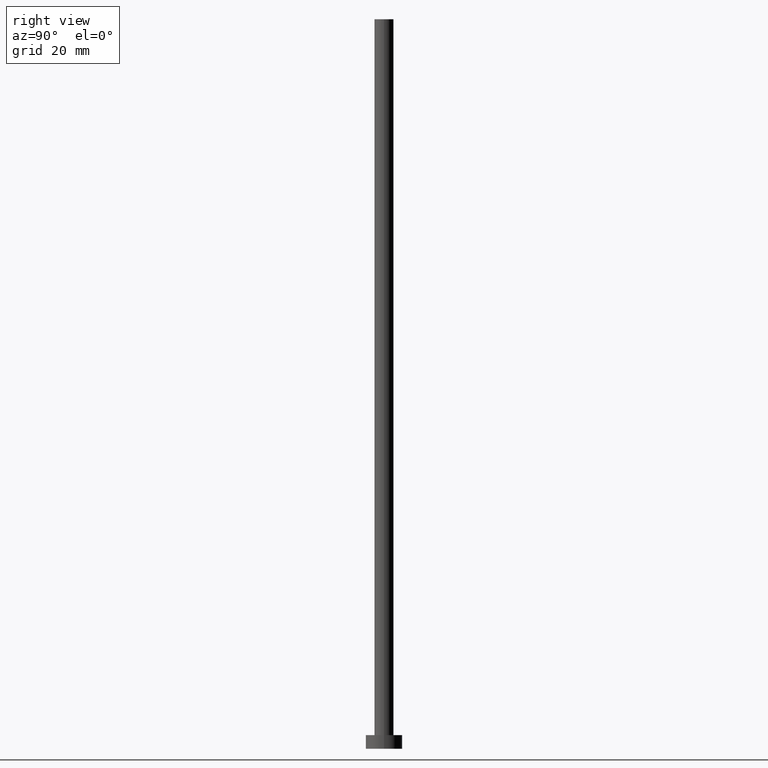
[diagram: clean part render]
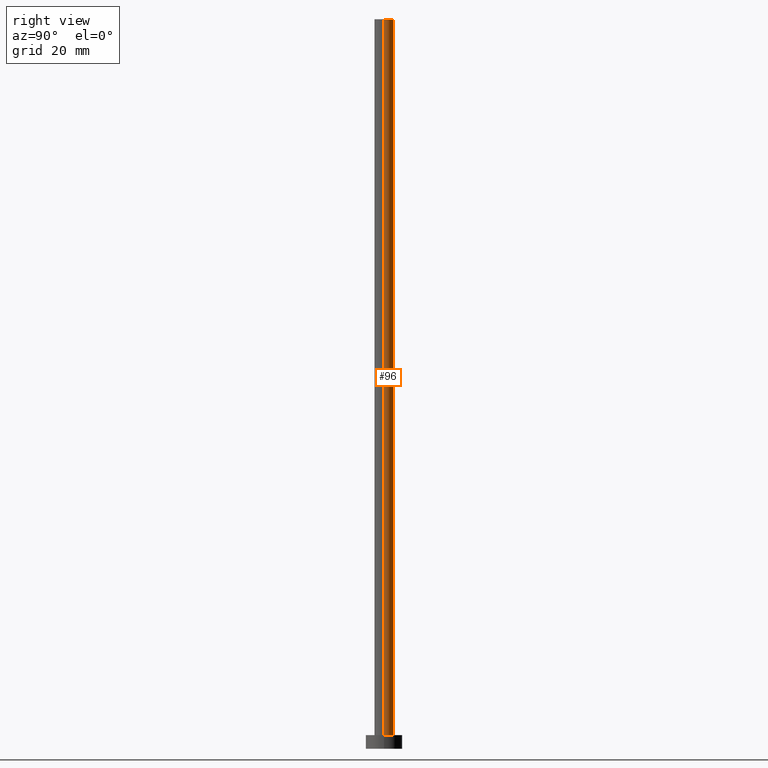
[diagram: same view with one face highlighted and labeled with its STEP entity id]
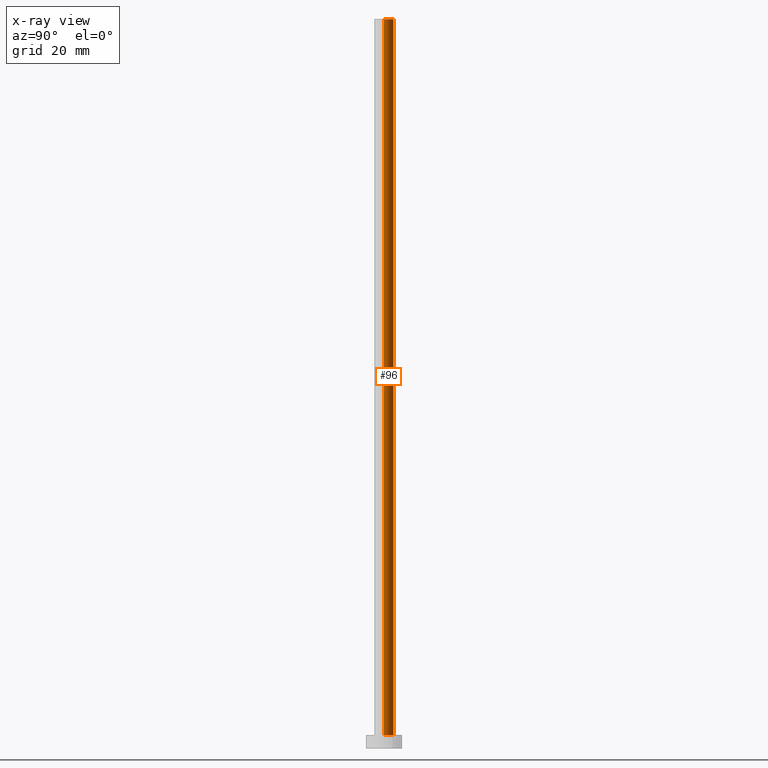
[diagram: x-ray of the same camera — body ghosted, the highlighted face saturated]
A machine part, right view. The second image highlights one B-rep face of the part: STEP entity #96.
The next image is the same camera in x-ray: the body ghosted, the highlighted face saturated — about 0% of this face is hidden behind the body in this view.
In plain terms, the highlighted cylindrical surface (edge-blend (fillet) strip) has radius 2.1 mm, axis along (-0, -0, -1).
Its self-contained STEP definition (entity closure, byte-faithful):
#3 = EDGE_CURVE ( 'NONE', #84, #190, #68, .T. ) ;
#4 = EDGE_CURVE ( 'NONE', #190, #227, #78, .T. ) ;
#9 = AXIS2_PLACEMENT_3D ( 'NONE', #69, #152, #172 ) ;
#24 = EDGE_LOOP ( 'NONE', ( #203, #230, #221, #211 ) ) ;
#30 = CIRCLE ( 'NONE', #223, 2.100000000000000089 ) ;
#31 = CARTESIAN_POINT ( 'NONE',  ( -2.100000000000000089, 0.000000000000000000, 160.0000000000000000 ) ) ;
#32 = LINE ( 'NONE', #207, #125 ) ;
#33 = DIRECTION ( 'NONE',  ( -0.000000000000000000, -0.000000000000000000, -1.000000000000000000 ) ) ;
#37 = DIRECTION ( 'NONE',  ( 1.000000000000000000, 0.000000000000000000, 0.000000000000000000 ) ) ;
#51 = FACE_OUTER_BOUND ( 'NONE', #24, .T. ) ;
#68 = LINE ( 'NONE', #154, #133 ) ;
#69 = CARTESIAN_POINT ( 'NONE',  ( 0.000000000000000000, 0.000000000000000000, 160.0000000000000000 ) ) ;
#78 = CIRCLE ( 'NONE', #157, 2.100000000000000089 ) ;
#84 = VERTEX_POINT ( 'NONE', #145 ) ;
#91 = DIRECTION ( 'NONE',  ( -0.000000000000000000, -0.000000000000000000, -1.000000000000000000 ) ) ;
#96 = ADVANCED_FACE ( 'NONE', ( #51 ), #209, .T. ) ;
#121 = EDGE_CURVE ( 'NONE', #218, #227, #32, .T. ) ;
#125 = VECTOR ( 'NONE', #33, 1000.000000000000000 ) ;
#133 = VECTOR ( 'NONE', #91, 1000.000000000000000 ) ;
#142 = CARTESIAN_POINT ( 'NONE',  ( 0.000000000000000000, 0.000000000000000000, 160.0000000000000000 ) ) ;
#145 = CARTESIAN_POINT ( 'NONE',  ( 2.100000000000000089, 2.571758278209441957E-16, 160.0000000000000000 ) ) ;
#152 = DIRECTION ( 'NONE',  ( -0.000000000000000000, -0.000000000000000000, -1.000000000000000000 ) ) ;
#154 = CARTESIAN_POINT ( 'NONE',  ( 2.100000000000000089, 2.571758278209441957E-16, 160.0000000000000000 ) ) ;
#157 = AXIS2_PLACEMENT_3D ( 'NONE', #171, #229, #37 ) ;
#171 = CARTESIAN_POINT ( 'NONE',  ( 0.000000000000000000, 0.000000000000000000, 3.000000000000000000 ) ) ;
#172 = DIRECTION ( 'NONE',  ( -1.000000000000000000, 0.000000000000000000, 0.000000000000000000 ) ) ;
#175 = DIRECTION ( 'NONE',  ( 1.000000000000000000, 0.000000000000000000, 0.000000000000000000 ) ) ;
#190 = VERTEX_POINT ( 'NONE', #248 ) ;
#203 = ORIENTED_EDGE ( 'NONE', *, *, #246, .F. ) ;
#207 = CARTESIAN_POINT ( 'NONE',  ( -2.100000000000000089, 0.000000000000000000, 160.0000000000000000 ) ) ;
#209 = CYLINDRICAL_SURFACE ( 'NONE', #9, 2.100000000000000089 ) ;
#211 = ORIENTED_EDGE ( 'NONE', *, *, #121, .F. ) ;
#213 = DIRECTION ( 'NONE',  ( 0.000000000000000000, 0.000000000000000000, 1.000000000000000000 ) ) ;
#218 = VERTEX_POINT ( 'NONE', #31 ) ;
#221 = ORIENTED_EDGE ( 'NONE', *, *, #4, .T. ) ;
#223 = AXIS2_PLACEMENT_3D ( 'NONE', #142, #213, #175 ) ;
#227 = VERTEX_POINT ( 'NONE', #243 ) ;
#229 = DIRECTION ( 'NONE',  ( 0.000000000000000000, 0.000000000000000000, 1.000000000000000000 ) ) ;
#230 = ORIENTED_EDGE ( 'NONE', *, *, #3, .T. ) ;
#243 = CARTESIAN_POINT ( 'NONE',  ( -2.100000000000000089, 0.000000000000000000, 3.000000000000000000 ) ) ;
#246 = EDGE_CURVE ( 'NONE', #84, #218, #30, .T. ) ;
#248 = CARTESIAN_POINT ( 'NONE',  ( 2.100000000000000089, 2.571758278209441957E-16, 3.000000000000000000 ) ) ;